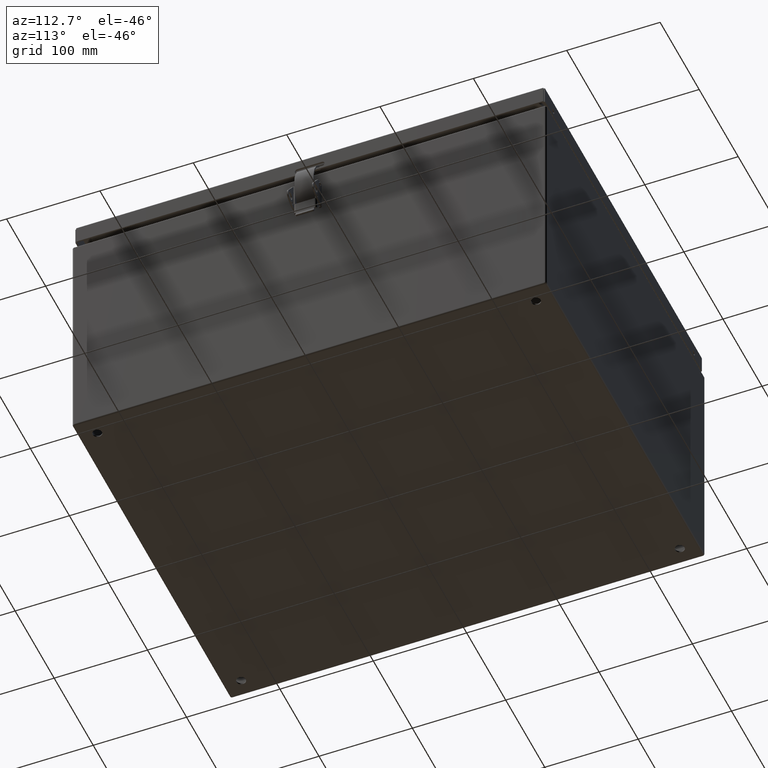
[diagram: clean part render]
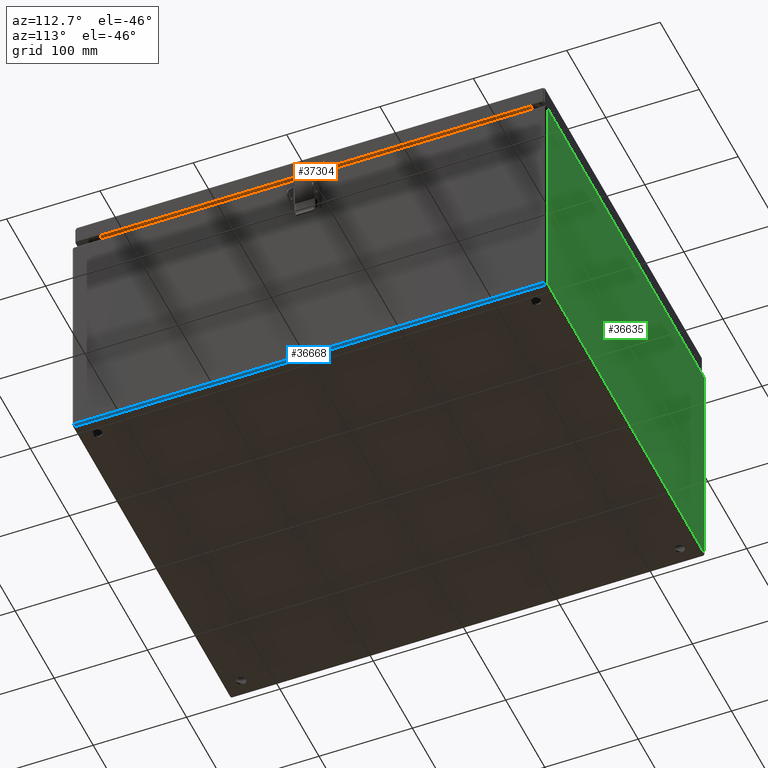
[diagram: same view with three faces highlighted in distinct colors, each labeled with its STEP entity id]
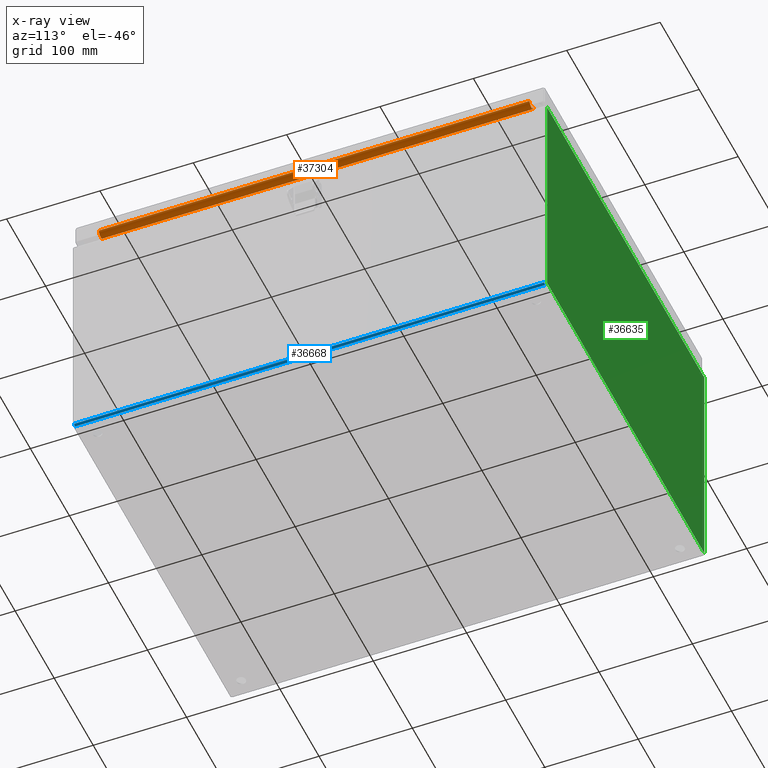
[diagram: x-ray of the same camera — body ghosted, the three highlighted faces saturated]
A machine part, auxiliary view with three faces highlighted in distinct colors.
The next image is the same camera in x-ray (body ghosted, the three faces saturated) — at least one of them is partly hidden behind the body in this view.
Their STEP definitions:

[orange] entity #37304 — the highlighted cylindrical surface (edge-blend (fillet) strip) has radius 5 mm, axis along (0, 1, -0).
#3862=LINE('',#66404,#6059);
#3863=LINE('',#66405,#6060);
#6059=VECTOR('',#44541,0.393700787401575);
#6060=VECTOR('',#44542,0.393700787401575);
#8191=CYLINDRICAL_SURFACE('',#40226,0.196850393700787);
#9370=FACE_OUTER_BOUND('',#11696,.T.);
#11696=EDGE_LOOP('',(#28332,#28333,#28334,#28335));
#13580=CIRCLE('',#40219,0.196850393700787);
#13584=CIRCLE('',#40224,0.196850393700787);
#16167=VERTEX_POINT('',#66392);
#16168=VERTEX_POINT('',#66393);
#16169=VERTEX_POINT('',#66398);
#16170=VERTEX_POINT('',#66400);
#20508=EDGE_CURVE('',#16167,#16168,#13580,.T.);
#20512=EDGE_CURVE('',#16169,#16170,#13584,.T.);
#20514=EDGE_CURVE('',#16167,#16169,#3862,.T.);
#20515=EDGE_CURVE('',#16170,#16168,#3863,.T.);
#28332=ORIENTED_EDGE('',*,*,#20512,.F.);
#28333=ORIENTED_EDGE('',*,*,#20514,.F.);
#28334=ORIENTED_EDGE('',*,*,#20508,.T.);
#28335=ORIENTED_EDGE('',*,*,#20515,.F.);
#37304=ADVANCED_FACE('',(#9370),#8191,.T.);
#40219=AXIS2_PLACEMENT_3D('',#66394,#44525,#44526);
#40224=AXIS2_PLACEMENT_3D('',#66401,#44535,#44536);
#40226=AXIS2_PLACEMENT_3D('',#66403,#44539,#44540);
#44525=DIRECTION('center_axis',(0.,1.,0.));
#44526=DIRECTION('ref_axis',(-1.,0.,0.));
#44535=DIRECTION('center_axis',(7.10542735760095E-15,1.,0.));
#44536=DIRECTION('ref_axis',(0.,0.,1.));
#44539=DIRECTION('center_axis',(0.,-1.,0.));
#44540=DIRECTION('ref_axis',(0.707106781186547,0.,0.707106781186547));
#44541=DIRECTION('',(0.,1.,0.));
#44542=DIRECTION('',(0.,-1.,0.));
#66392=CARTESIAN_POINT('',(7.10307086614173,-9.08309842519687,0.));
#66393=CARTESIAN_POINT('',(7.4967716535433,-9.08309842519687,0.));
#66394=CARTESIAN_POINT('Origin',(7.29992125984251,-9.08309842519687,0.));
#66398=CARTESIAN_POINT('',(7.10307086614173,9.08309842519687,0.));
#66400=CARTESIAN_POINT('',(7.4967716535433,9.08309842519687,0.));
#66401=CARTESIAN_POINT('Origin',(7.29992125984251,9.08309842519687,0.));
#66403=CARTESIAN_POINT('Origin',(7.29992125984251,4.75389960629922,0.));
#66404=CARTESIAN_POINT('',(7.10307086614173,4.55704921259844,0.));
#66405=CARTESIAN_POINT('',(7.4967716535433,9.50779921259845,0.));

[blue] entity #36668 — the highlighted cylindrical surface (edge-blend (fillet) strip) has radius 2.1336 mm, axis along (0, -1, 0).
#3606=LINE('',#52491,#5803);
#3663=LINE('',#52715,#5860);
#5803=VECTOR('',#43287,0.393700787401575);
#5860=VECTOR('',#43536,0.393700787401575);
#7975=CYLINDRICAL_SURFACE('',#39823,0.0840000000000002);
#8734=FACE_OUTER_BOUND('',#11036,.T.);
#11036=EDGE_LOOP('',(#24720,#24721,#24722,#24723));
#13421=CIRCLE('',#39718,0.0840000000000002);
#13427=CIRCLE('',#39729,0.0840000000000002);
#14944=VERTEX_POINT('',#52470);
#14945=VERTEX_POINT('',#52471);
#14950=VERTEX_POINT('',#52490);
#14955=VERTEX_POINT('',#52502);
#18624=EDGE_CURVE('',#14944,#14945,#13421,.T.);
#18634=EDGE_CURVE('',#14944,#14950,#3606,.T.);
#18640=EDGE_CURVE('',#14955,#14950,#13427,.T.);
#18749=EDGE_CURVE('',#14955,#14945,#3663,.T.);
#24720=ORIENTED_EDGE('',*,*,#18624,.T.);
#24721=ORIENTED_EDGE('',*,*,#18749,.F.);
#24722=ORIENTED_EDGE('',*,*,#18640,.T.);
#24723=ORIENTED_EDGE('',*,*,#18634,.F.);
#36668=ADVANCED_FACE('',(#8734),#7975,.T.);
#39718=AXIS2_PLACEMENT_3D('',#52472,#43263,#43264);
#39729=AXIS2_PLACEMENT_3D('',#52503,#43295,#43296);
#39823=AXIS2_PLACEMENT_3D('',#52714,#43534,#43535);
#43263=DIRECTION('center_axis',(0.,1.,0.));
#43264=DIRECTION('ref_axis',(0.,0.,-1.));
#43287=DIRECTION('',(1.32126139909973E-18,1.,-7.12199909594127E-33));
#43295=DIRECTION('center_axis',(0.,-1.,0.));
#43296=DIRECTION('ref_axis',(0.,0.,-1.));
#43534=DIRECTION('center_axis',(0.,-1.,0.));
#43535=DIRECTION('ref_axis',(0.,0.,-1.));
#43536=DIRECTION('',(0.,-1.,0.));
#52470=CARTESIAN_POINT('',(8.,-9.916,0.084));
#52471=CARTESIAN_POINT('',(7.916,-9.916,0.));
#52472=CARTESIAN_POINT('Origin',(7.916,-9.916,0.084));
#52490=CARTESIAN_POINT('',(8.,9.916,0.0840000000000006));
#52491=CARTESIAN_POINT('',(8.,-2.45093989533001E-20,0.0840000000000006));
#52502=CARTESIAN_POINT('',(7.916,9.916,0.));
#52503=CARTESIAN_POINT('Origin',(7.916,9.916,0.084));
#52714=CARTESIAN_POINT('Origin',(7.916,4.958,0.084));
#52715=CARTESIAN_POINT('',(7.916,-5.,0.));

[green] entity #36635 — the highlighted planar face has unit normal (0, 1, 0).
#3612=LINE('',#52509,#5809);
#3613=LINE('',#52515,#5810);
#3616=LINE('',#52522,#5813);
#3617=LINE('',#52523,#5814);
#5809=VECTOR('',#43303,0.393700787401575);
#5810=VECTOR('',#43312,0.393700787401575);
#5813=VECTOR('',#43319,0.393700787401575);
#5814=VECTOR('',#43320,0.393700787401575);
#8701=FACE_OUTER_BOUND('',#10993,.T.);
#10993=EDGE_LOOP('',(#24544,#24545,#24546,#24547));
#14956=VERTEX_POINT('',#52504);
#14957=VERTEX_POINT('',#52508);
#14958=VERTEX_POINT('',#52514);
#14960=VERTEX_POINT('',#52521);
#18643=EDGE_CURVE('',#14956,#14957,#3612,.T.);
#18646=EDGE_CURVE('',#14957,#14958,#3613,.T.);
#18650=EDGE_CURVE('',#14956,#14960,#3616,.T.);
#18651=EDGE_CURVE('',#14958,#14960,#3617,.T.);
#24544=ORIENTED_EDGE('',*,*,#18643,.F.);
#24545=ORIENTED_EDGE('',*,*,#18650,.T.);
#24546=ORIENTED_EDGE('',*,*,#18651,.F.);
#24547=ORIENTED_EDGE('',*,*,#18646,.F.);
#35918=PLANE('',#39738);
#36635=ADVANCED_FACE('',(#8701),#35918,.T.);
#39738=AXIS2_PLACEMENT_3D('',#52520,#43317,#43318);
#43303=DIRECTION('',(8.32191049178363E-22,-3.65333702044687E-12,1.));
#43312=DIRECTION('',(-1.,6.99353086378116E-12,0.));
#43317=DIRECTION('center_axis',(3.65333701905259E-12,1.,3.65333702044687E-12));
#43318=DIRECTION('ref_axis',(0.,-3.65333702044687E-12,1.));
#43319=DIRECTION('',(-1.,0.,0.));
#43320=DIRECTION('',(8.32191049178363E-22,3.65333702044687E-12,-1.));
#52504=CARTESIAN_POINT('',(7.91600000000005,10.,0.0839999999999978));
#52508=CARTESIAN_POINT('',(7.91600000000036,9.99999999999419,9.916));
#52509=CARTESIAN_POINT('',(7.91600000000036,9.99999999999699,9.91590000003485));
#52514=CARTESIAN_POINT('',(-7.91599999999974,10.0000000001049,9.916));
#52515=CARTESIAN_POINT('',(7.07827438275129,10.,9.916));
#52520=CARTESIAN_POINT('Origin',(7.07817438275129,10.0000000000001,9.9159));
#52521=CARTESIAN_POINT('',(-7.916,10.,0.084));
#52522=CARTESIAN_POINT('',(-58.9489083394713,10.,0.0839999999999978));
#52523=CARTESIAN_POINT('',(-7.91599999999975,10.0000000000548,9.91590000003485));